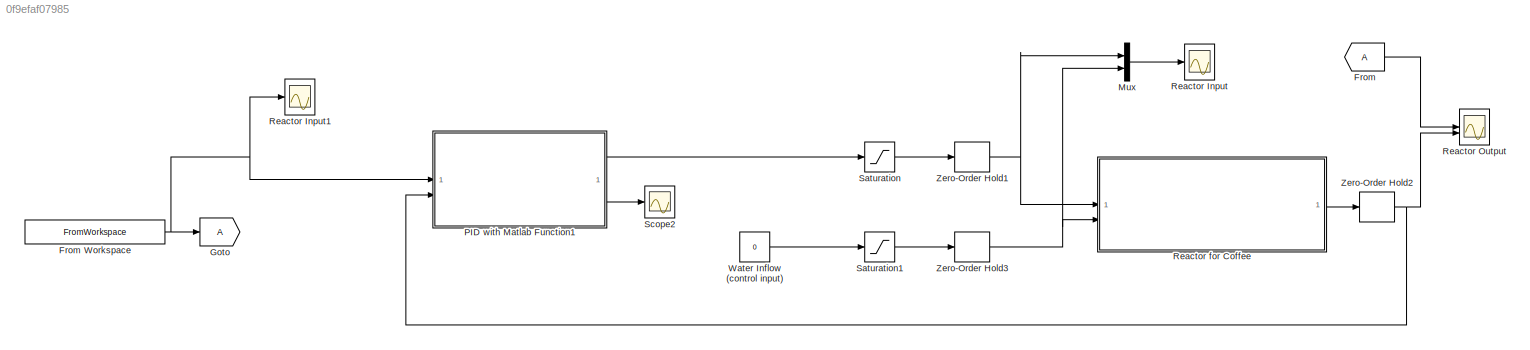
MODEL slx_0f9efaf07985
KIND model
CONFIG AbsTol = auto
CONFIG EnableMultiTasking = off
CONFIG FixedStep = simulationParameters.Tint
CONFIG MaxStep = auto
CONFIG MinStep = auto
CONFIG RelTol = 1e-3
CONFIG SampleTimeConstraint = Unconstrained
CONFIG SolverName = ode4
CONFIG StartTime = 0.0
CONFIG StopTime = simulationParameters.Tsim
BLOCK [From] From
BLOCK [FromWorkspace] From Workspace
  OutputAfterFinalValue = Holding final value
  VariableName = simulationParameters.y_target
BLOCK [Goto] Goto
BLOCK [Mux] Mux
  DisplayOption = bar
  Inputs = 2
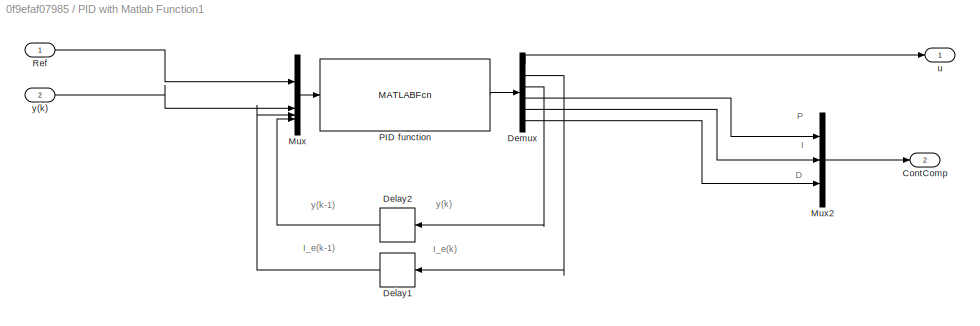
BLOCK [SubSystem] PID with Matlab Function1
BLOCK [Outport] PID with Matlab Function1/ContComp
  Port = 2
BLOCK [Delay] PID with Matlab Function1/Delay1
  DelayLength = 1
  InputPortMap = u0
  NameLocation = top
BLOCK [Delay] PID with Matlab Function1/Delay2
  DelayLength = 1
  InputPortMap = u0
  NameLocation = top
BLOCK [Demux] PID with Matlab Function1/Demux
  Outputs = 6
BLOCK [Mux] PID with Matlab Function1/Mux
  DisplayOption = bar
BLOCK [Mux] PID with Matlab Function1/Mux2
  DisplayOption = bar
  Inputs = 3
BLOCK [MATLABFcn] PID with Matlab Function1/PID function
  MATLABFcn = myPID(u(1),u(2),u(3),u(4),controller_parameters)
  OutputDimensions = 6
BLOCK [Inport] PID with Matlab Function1/Ref
BLOCK [Outport] PID with Matlab Function1/u
BLOCK [Inport] PID with Matlab Function1/y(k)
  Port = 2
BLOCK [Scope] Reactor Input
  Floating = off
  NumInputPorts = 1
  ScopeSpecificationString = Simulink.scopes.TimeScopeBlockCfg('CurrentConfiguration', extmgr.ConfigurationSet(extmgr.Configuration('Core','General UI',true),extmgr.Configuration('Core','Source UI',true),extmgr.Configuration('Sources','WiredSimulink',true,'DataLogging',true,'DataLoggingVariableName','reactorInput','DataLoggingSaveFormat','StructureWithTime'),extmgr.Configuration('Visuals','Time Domain',true,'SerializedDisplay...<+1623ch>
BLOCK [Scope] Reactor Input1
  Floating = off
  NumInputPorts = 1
  ScopeSpecificationString = Simulink.scopes.TimeScopeBlockCfg('CurrentConfiguration', extmgr.ConfigurationSet(extmgr.Configuration('Core','General UI',true),extmgr.Configuration('Core','Source UI',true),extmgr.Configuration('Sources','WiredSimulink',true,'DataLogging',true,'DataLoggingVariableName','ScopeData1','DataLoggingSaveFormat','StructureWithTime'),extmgr.Configuration('Visuals','Time Domain',true,'SerializedDisplays'...<+1572ch>
BLOCK [Scope] Reactor Output
  Floating = off
  NumInputPorts = 2
  ScopeSpecificationString = Simulink.scopes.TimeScopeBlockCfg('CurrentConfiguration', extmgr.ConfigurationSet(extmgr.Configuration('Core','General UI',true),extmgr.Configuration('Core','Source UI',true),extmgr.Configuration('Sources','WiredSimulink',true,'DataLogging',true,'DataLoggingVariableName','reactorOutput','DataLoggingSaveFormat','StructureWithTime'),extmgr.Configuration('Visuals','Time Domain',true,'SerializedDispla...<+1572ch>
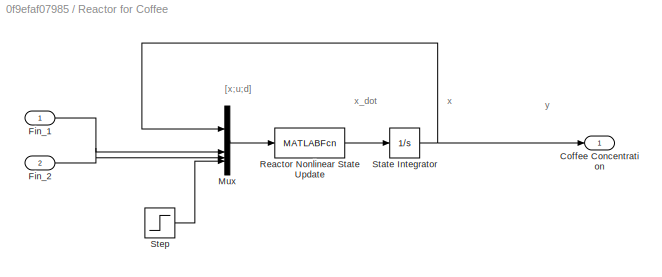
BLOCK [SubSystem] Reactor for Coffee
BLOCK [Outport] Reactor for Coffee/Coffee Concentration
BLOCK [Inport] Reactor for Coffee/Fin_1
BLOCK [Inport] Reactor for Coffee/Fin_2
  Port = 2
BLOCK [Mux] Reactor for Coffee/Mux
  DisplayOption = bar
BLOCK [MATLABFcn] Reactor for Coffee/Reactor Nonlinear State Update
  MATLABFcn = ReactorModel_StateUpdate(u(1),u(2:3),u(4),simulationParameters.Reactor_parameters)
  OutputDimensions = simulationParameters.Reactor_parameters.n
BLOCK [Integrator] Reactor for Coffee/State Integrator
  InitialCondition = simulationParameters.Reactor_parameters.x_0
BLOCK [Step] Reactor for Coffee/Step
  After = simulationParameters.Reactor_parameters.Adist
  SampleTime = 0
  Time = simulationParameters.Reactor_parameters.Tdist
BLOCK [Saturate] Saturation
  LowerLimit = simulationParameters.Fin1_min
  UpperLimit = simulationParameters.Fin1_max
BLOCK [Saturate] Saturation1
  LowerLimit = simulationParameters.Fin2_min
  UpperLimit = simulationParameters.Fin2_max
BLOCK [Scope] Scope2
  Floating = off
  NameLocation = left
  NumInputPorts = 1
  ScopeSpecificationString = Simulink.scopes.TimeScopeBlockCfg('CurrentConfiguration', extmgr.ConfigurationSet(extmgr.Configuration('Core','General UI',true),extmgr.Configuration('Core','Source UI',true),extmgr.Configuration('Sources','WiredSimulink',true,'DataLogging',true,'DataLoggingVariableName','ScopeData5','DataLoggingSaveFormat','StructureWithTime','DataLoggingDecimation','1','DataLoggingDecimateData',true),extmgr.Conf...<+1864ch>
BLOCK [Constant] Water Inflow (control input)
  Value = 0
BLOCK [ZeroOrderHold] Zero-Order Hold1
  SampleTime = simulationParameters.Ts
BLOCK [ZeroOrderHold] Zero-Order Hold2
  SampleTime = simulationParameters.Ts
BLOCK [ZeroOrderHold] Zero-Order Hold3
  SampleTime = simulationParameters.Ts
ANNOTATION PID with Matlab Function1: D
ANNOTATION PID with Matlab Function1: I
ANNOTATION PID with Matlab Function1: I_e(k)
ANNOTATION PID with Matlab Function1: I_e(k-1)
ANNOTATION PID with Matlab Function1: P
ANNOTATION PID with Matlab Function1: y(k)
ANNOTATION PID with Matlab Function1: y(k-1)
ANNOTATION Reactor for Coffee: [x;u;d]
ANNOTATION Reactor for Coffee: x
ANNOTATION Reactor for Coffee: x_dot
ANNOTATION Reactor for Coffee: y
NET From Workspace:1 -> Goto:1, PID with Matlab Function1:1, Reactor Input1:1
LINE From:1 -> Reactor Output:1
LINE Mux:1 -> Reactor Input:1
LINE PID with Matlab Function1/Delay1:1 -> PID with Matlab Function1/Mux:3
LINE PID with Matlab Function1/Delay2:1 -> PID with Matlab Function1/Mux:4
LINE PID with Matlab Function1/Demux:1 -> PID with Matlab Function1/u:1
LINE PID with Matlab Function1/Demux:2 -> PID with Matlab Function1/Delay1:1
LINE PID with Matlab Function1/Demux:3 -> PID with Matlab Function1/Delay2:1
LINE PID with Matlab Function1/Demux:4 -> PID with Matlab Function1/Mux2:1
LINE PID with Matlab Function1/Demux:5 -> PID with Matlab Function1/Mux2:2
LINE PID with Matlab Function1/Demux:6 -> PID with Matlab Function1/Mux2:3
LINE PID with Matlab Function1/Mux2:1 -> PID with Matlab Function1/ContComp:1
LINE PID with Matlab Function1/Mux:1 -> PID with Matlab Function1/PID function:1
LINE PID with Matlab Function1/PID function:1 -> PID with Matlab Function1/Demux:1
LINE PID with Matlab Function1/Ref:1 -> PID with Matlab Function1/Mux:1
LINE PID with Matlab Function1/y(k):1 -> PID with Matlab Function1/Mux:2
LINE PID with Matlab Function1:1 -> Saturation:1
LINE PID with Matlab Function1:2 -> Scope2:1
LINE Reactor for Coffee/Fin_1:1 -> Reactor for Coffee/Mux:2
LINE Reactor for Coffee/Fin_2:1 -> Reactor for Coffee/Mux:3
LINE Reactor for Coffee/Mux:1 -> Reactor for Coffee/Reactor Nonlinear State Update:1
LINE Reactor for Coffee/Reactor Nonlinear State Update:1 -> Reactor for Coffee/State Integrator:1
NET Reactor for Coffee/State Integrator:1 -> Reactor for Coffee/Coffee Concentration:1, Reactor for Coffee/Mux:1
LINE Reactor for Coffee/Step:1 -> Reactor for Coffee/Mux:4
LINE Reactor for Coffee:1 -> Zero-Order Hold2:1
LINE Saturation1:1 -> Zero-Order Hold3:1
LINE Saturation:1 -> Zero-Order Hold1:1
LINE Water Inflow (control input):1 -> Saturation1:1
NET Zero-Order Hold1:1 -> Mux:1, Reactor for Coffee:1
NET Zero-Order Hold2:1 -> PID with Matlab Function1:2, Reactor Output:2
NET Zero-Order Hold3:1 -> Mux:2, Reactor for Coffee:2
note: NET lines group one-source signal fan-out (src -> all destinations, sorted); 1:1 wires keep LINE
